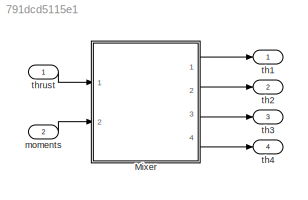
MODEL slx_791dcd5115e1
KIND model
CONFIG AbsTol = auto
CONFIG FixedStep = sample_time
CONFIG InitFcn = Parameters_quadrotor\nParameters_controllers
CONFIG MaxStep = auto
CONFIG MinStep = auto
CONFIG RelTol = 1e-3
CONFIG SampleTimeConstraint = Unconstrained
CONFIG Solver = ode2
CONFIG SolverMode = Auto
CONFIG SolverName = ode2
CONFIG StartTime = 0.0
CONFIG StopTime = 10.0
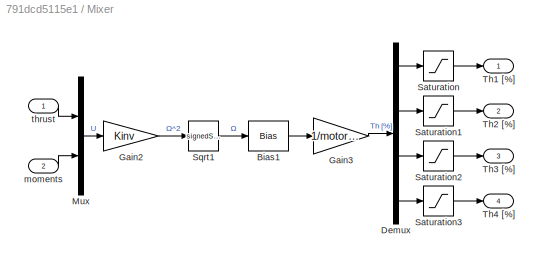
BLOCK [SubSystem] Mixer
  InitFcn = %%Parameters definition\nb = 0.55/2;\nRPMmax = 3*4.2*710;\nD = 12*2.54/100;\nCt = 0.001;\nCq = 0.001;\nro = 1.225;\n\n%% From omega squared to forces/torques\n A = ro*D^4*diag([Ct b/sqrt(2)*Ct b/sqrt(2)*Ct Cq*D]);\n B = [ 1  1  1 1;\n         1 -1 -1 1;\n        -1 -1  1 1;\n        -1  1 -1 1];\n C = inv(A*B);       %TM = C * omegasq
  Ports = [2, 4]
  RequestExecContextInheritance = off
  Variant = off
BLOCK [Bias] Mixer/Bias1
  Bias = -motor_ome_vs_throttle(2)
  SaturateOnIntegerOverflow = off
BLOCK [Demux] Mixer/Demux
  DisplayOption = bar
  Ports = [1, 4]
BLOCK [Gain] Mixer/Gain2
  Gain = Kinv
  Multiplication = Matrix(K*u)
  OutDataTypeStr = Inherit: Inherit via internal rule
  ParamDataTypeStr = Inherit: Inherit via internal rule
  SaturateOnIntegerOverflow = off
BLOCK [Gain] Mixer/Gain3
  Gain = 1/motor_ome_vs_throttle(1)
  OutDataTypeStr = Inherit: Inherit via internal rule
  ParamDataTypeStr = Inherit: Inherit via internal rule
  SaturateOnIntegerOverflow = off
BLOCK [Mux] Mixer/Mux
  DisplayOption = bar
  Inputs = 2
  Ports = [2, 1]
BLOCK [Saturate] Mixer/Saturation
  InputPortMap = u0
  LowerLimit = 0
  Ports = [1, 1]
  UpperLimit = 100
BLOCK [Saturate] Mixer/Saturation1
  InputPortMap = u0
  LowerLimit = 0
  Ports = [1, 1]
  UpperLimit = 100
BLOCK [Saturate] Mixer/Saturation2
  InputPortMap = u0
  LowerLimit = 0
  Ports = [1, 1]
  UpperLimit = 100
BLOCK [Saturate] Mixer/Saturation3
  InputPortMap = u0
  LowerLimit = 0
  Ports = [1, 1]
  UpperLimit = 100
BLOCK [Sqrt] Mixer/Sqrt1
  Operator = signedSqrt
BLOCK [Outport] Mixer/Th1 [%]
  IconDisplay = Port number
BLOCK [Outport] Mixer/Th2 [%]
  IconDisplay = Port number
  Port = 2
BLOCK [Outport] Mixer/Th3 [%]
  IconDisplay = Port number
  Port = 3
BLOCK [Outport] Mixer/Th4 [%]
  IconDisplay = Port number
  Port = 4
BLOCK [Inport] Mixer/moments
  IconDisplay = Port number
  Port = 2
  PortDimensions = 3
BLOCK [Inport] Mixer/thrust
  IconDisplay = Port number
BLOCK [Inport] moments
  IconDisplay = Port number
  Port = 2
  PortDimensions = 3
BLOCK [Outport] th1
  IconDisplay = Port number
BLOCK [Outport] th2
  IconDisplay = Port number
  Port = 2
BLOCK [Outport] th3
  IconDisplay = Port number
  Port = 3
BLOCK [Outport] th4 
  IconDisplay = Port number
  Port = 4
BLOCK [Inport] thrust
  IconDisplay = Port number
LINE Mixer/Bias1:1 -> Mixer/Gain3:1
LINE Mixer/Demux:1 -> Mixer/Saturation:1
LINE Mixer/Demux:2 -> Mixer/Saturation1:1
LINE Mixer/Demux:3 -> Mixer/Saturation2:1
LINE Mixer/Demux:4 -> Mixer/Saturation3:1
LINE Mixer/Gain2:1 -> Mixer/Sqrt1:1
LINE Mixer/Gain3:1 -> Mixer/Demux:1
LINE Mixer/Mux:1 -> Mixer/Gain2:1
LINE Mixer/Saturation1:1 -> Mixer/Th2 [%]:1
LINE Mixer/Saturation2:1 -> Mixer/Th3 [%]:1
LINE Mixer/Saturation3:1 -> Mixer/Th4 [%]:1
LINE Mixer/Saturation:1 -> Mixer/Th1 [%]:1
LINE Mixer/Sqrt1:1 -> Mixer/Bias1:1
LINE Mixer/moments:1 -> Mixer/Mux:2
LINE Mixer/thrust:1 -> Mixer/Mux:1
LINE Mixer:1 -> th1:1
LINE Mixer:2 -> th2:1
LINE Mixer:3 -> th3:1
LINE Mixer:4 -> th4 :1
LINE moments:1 -> Mixer:2
LINE thrust:1 -> Mixer:1
